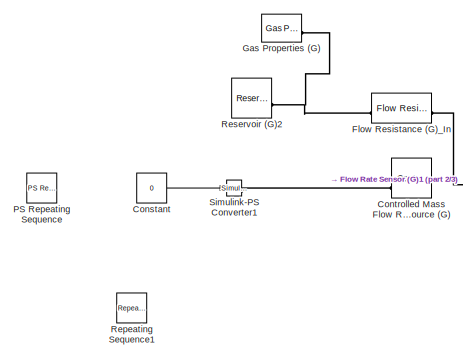
[diagram: root canvas - part 1/3, top left region]
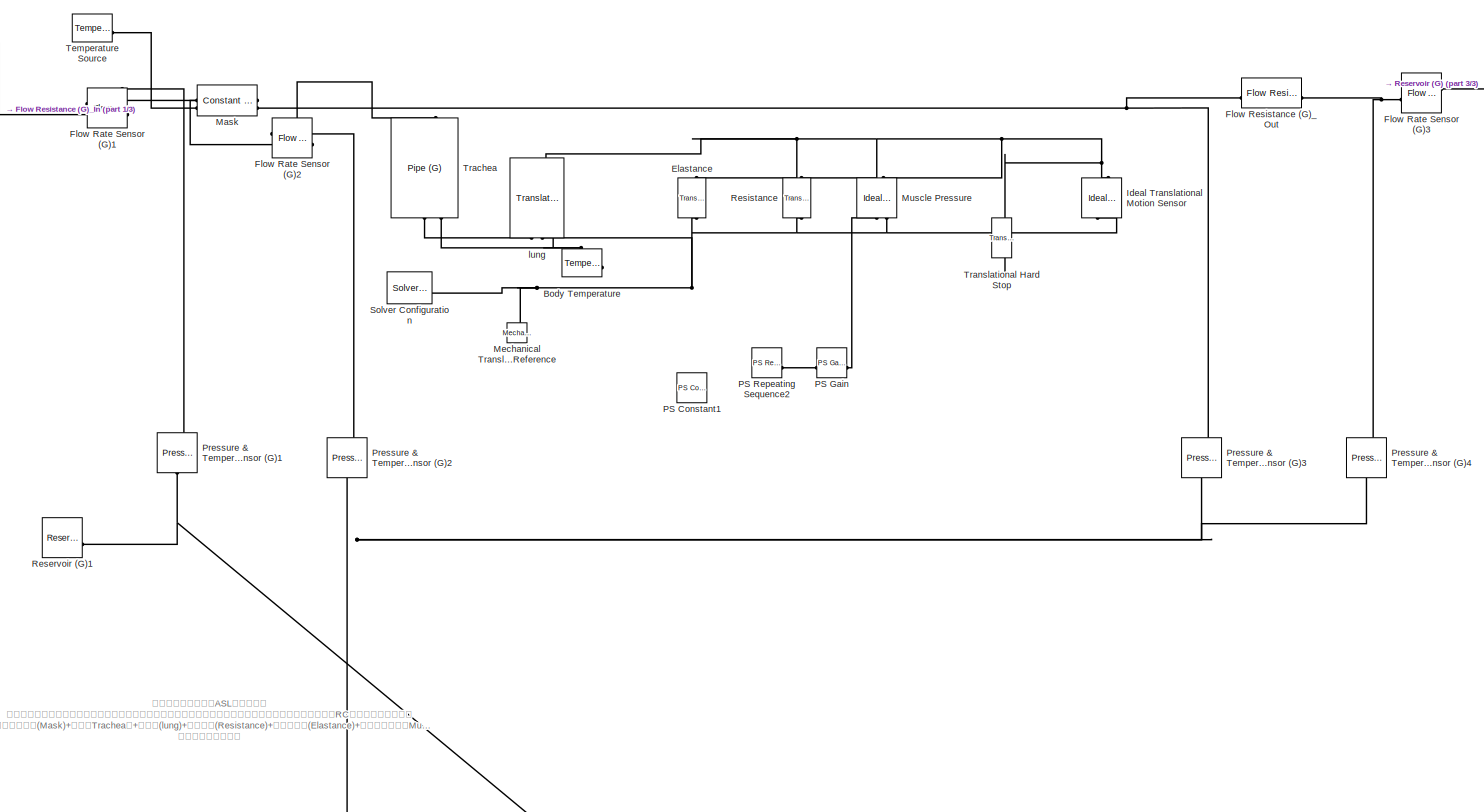
[diagram: root canvas - part 2/3, top center region]
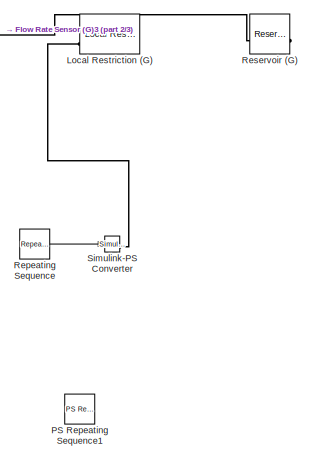
[diagram: root canvas - part 3/3, top right region]
MODEL slx_c47e8e62d65a
KIND model
CONFIG AbsTol = 1e-3
CONFIG EnableMultiTasking = off
CONFIG FixedStep = auto
CONFIG MaxStep = auto
CONFIG MinStep = auto
CONFIG RelTol = 1e-3
CONFIG SampleTimeConstraint = Unconstrained
CONFIG SolverName = VariableStepAuto
CONFIG StartTime = 0.0
CONFIG StopTime = 8
WORKSPACE source: mxarray member
WORKSPACE Cha: volumes (value not decoded)
WORKSPACE E_respriatory = 10
WORKSPACE FRC = 2
WORKSPACE Fan: object (value not decoded)
WORKSPACE L_to_m3 = 0.001
WORKSPACE Mask: object (value not decoded)
WORKSPACE Ori: object (value not decoded)
WORKSPACE Pipe: object (value not decoded)
WORKSPACE R_respiratory = 10
WORKSPACE Res: object (value not decoded)
WORKSPACE Trachea: object (value not decoded)
WORKSPACE VolMax = 0.9
WORKSPACE cmH2O_to_Pa = 98
WORKSPACE lung: object (value not decoded)
WORKSPACE r = 0.01
BLOCK [Reference] Body Temperature  REF=fl_lib/Thermal/Thermal Sources/Temperature Source
  NameLocation = top
  SourceBlock = fl_lib/Thermal/Thermal Sources/Temperature Source
  SourceType = Temperature Source
BLOCK [Constant] Constant
  Commented = on
  Value = 0
BLOCK [Reference] Controlled Mass Flow Rate Source (G)  REF=fl_lib/Gas/Sources/Controlled Mass Flow
Rate Source (G)
  Commented = on
  SourceBlock = fl_lib/Gas/Sources/Controlled Mass Flow\nRate Source (G)
  SourceType = Controlled Mass Flow\nRate Source (G)
BLOCK [Reference] Elastance  REF=fl_lib/Mechanical/Translational
Elements/Translational Spring
  NameLocation = left
  SourceBlock = fl_lib/Mechanical/Translational\nElements/Translational Spring
  SourceType = Translational Spring
BLOCK [Reference] Flow Rate Sensor (G)1  REF=fl_lib/Gas/Sensors/Flow Rate Sensor (G)
  SourceBlock = fl_lib/Gas/Sensors/Flow Rate Sensor (G)
  SourceType = Flow Rate Sensor (G)
BLOCK [Reference] Flow Rate Sensor (G)2  REF=fl_lib/Gas/Sensors/Flow Rate Sensor (G)
  SourceBlock = fl_lib/Gas/Sensors/Flow Rate Sensor (G)
  SourceType = Flow Rate Sensor (G)
BLOCK [Reference] Flow Rate Sensor (G)3  REF=fl_lib/Gas/Sensors/Flow Rate Sensor (G)
  SourceBlock = fl_lib/Gas/Sensors/Flow Rate Sensor (G)
  SourceType = Flow Rate Sensor (G)
BLOCK [Reference] Flow Resistance (G)_In  REF=fl_lib/Gas/Elements/Flow Resistance (G)
  SourceBlock = fl_lib/Gas/Elements/Flow Resistance (G)
  SourceType = Flow Resistance (G)
BLOCK [Reference] Flow Resistance (G)_Out  REF=fl_lib/Gas/Elements/Flow Resistance (G)
  SourceBlock = fl_lib/Gas/Elements/Flow Resistance (G)
  SourceType = Flow Resistance (G)
BLOCK [Reference] Gas Properties (G)  REF=fl_lib/Gas/Utilities/Gas Properties (G)
  SourceBlock = fl_lib/Gas/Utilities/Gas Properties (G)
  SourceType = Gas Properties (G)
BLOCK [Reference] Ideal Translational Motion Sensor  REF=fl_lib/Mechanical/Mechanical Sensors/Ideal Translational
Motion Sensor
  NameLocation = left
  SourceBlock = fl_lib/Mechanical/Mechanical Sensors/Ideal Translational\nMotion Sensor
  SourceType = Ideal Translational\nMotion Sensor
BLOCK [Reference] Local Restriction (G)  REF=fl_lib/Gas/Elements/Local Restriction
(G)
  Commented = on
  SourceBlock = fl_lib/Gas/Elements/Local Restriction\n(G)
  SourceType = Local Restriction\n(G)
BLOCK [Reference] Mask  REF=fl_lib/Gas/Elements/Constant Volume
Chamber (G)
  NameLocation = top
  SourceBlock = fl_lib/Gas/Elements/Constant Volume\nChamber (G)
  SourceType = Constant Volume\nChamber (G)
BLOCK [Reference] Mechanical Translational Reference  REF=fl_lib/Mechanical/Translational
Elements/Mechanical
Translational
Reference
  NameLocation = right
  SourceBlock = fl_lib/Mechanical/Translational\nElements/Mechanical\nTranslational\nReference
  SourceType = Mechanical\nTranslational\nReference
BLOCK [Reference] Muscle Pressure  REF=fl_lib/Mechanical/Mechanical Sources/Ideal Force Source
  NameLocation = right
  SourceBlock = fl_lib/Mechanical/Mechanical Sources/Ideal Force Source
  SourceType = Ideal Force Source
BLOCK [Reference] PS Constant1  REF=fl_lib/Physical Signals/Sources/PS Constant
  Commented = on
  SourceBlock = fl_lib/Physical Signals/Sources/PS Constant
  SourceType = PS Constant
BLOCK [Reference] PS Gain  REF=fl_lib/Physical Signals/Functions/PS Gain
  SourceBlock = fl_lib/Physical Signals/Functions/PS Gain
  SourceType = PS Gain
BLOCK [Reference] PS Repeating Sequence  REF=fl_lib/Physical Signals/Sources/PS Repeating
Sequence
  Commented = on
  SourceBlock = fl_lib/Physical Signals/Sources/PS Repeating\nSequence
  SourceType = PS Repeating\nSequence
BLOCK [Reference] PS Repeating Sequence1  REF=fl_lib/Physical Signals/Sources/PS Repeating
Sequence
  Commented = on
  SourceBlock = fl_lib/Physical Signals/Sources/PS Repeating\nSequence
  SourceType = PS Repeating\nSequence
BLOCK [Reference] PS Repeating Sequence2  REF=fl_lib/Physical Signals/Sources/PS Repeating
Sequence
  SourceBlock = fl_lib/Physical Signals/Sources/PS Repeating\nSequence
  SourceType = PS Repeating\nSequence
BLOCK [Reference] Pressure & Temperature Sensor (G)1  REF=fl_lib/Gas/Sensors/Pressure &
Temperature Sensor
(G)
  NameLocation = left
  SourceBlock = fl_lib/Gas/Sensors/Pressure &\nTemperature Sensor\n(G)
  SourceType = Pressure &\nTemperature Sensor\n(G)
BLOCK [Reference] Pressure & Temperature Sensor (G)2  REF=fl_lib/Gas/Sensors/Pressure &
Temperature Sensor
(G)
  NameLocation = left
  SourceBlock = fl_lib/Gas/Sensors/Pressure &\nTemperature Sensor\n(G)
  SourceType = Pressure &\nTemperature Sensor\n(G)
BLOCK [Reference] Pressure & Temperature Sensor (G)3  REF=fl_lib/Gas/Sensors/Pressure &
Temperature Sensor
(G)
  NameLocation = left
  SourceBlock = fl_lib/Gas/Sensors/Pressure &\nTemperature Sensor\n(G)
  SourceType = Pressure &\nTemperature Sensor\n(G)
BLOCK [Reference] Pressure & Temperature Sensor (G)4  REF=fl_lib/Gas/Sensors/Pressure &
Temperature Sensor
(G)
  NameLocation = left
  SourceBlock = fl_lib/Gas/Sensors/Pressure &\nTemperature Sensor\n(G)
  SourceType = Pressure &\nTemperature Sensor\n(G)
BLOCK [Reference] Repeating Sequence  REF=simulink/Sources/Repeating
Sequence
  Commented = on
  SourceBlock = simulink/Sources/Repeating\nSequence
  SourceType = Repeating table
BLOCK [Reference] Repeating Sequence1  REF=simulink/Sources/Repeating
Sequence
  Commented = on
  SourceBlock = simulink/Sources/Repeating\nSequence
  SourceType = Repeating table
BLOCK [Reference] Reservoir (G)  REF=fl_lib/Gas/Elements/Reservoir (G)
  NameLocation = top
  SourceBlock = fl_lib/Gas/Elements/Reservoir (G)
  SourceType = Reservoir (G)
BLOCK [Reference] Reservoir (G)1  REF=fl_lib/Gas/Elements/Reservoir (G)
  SourceBlock = fl_lib/Gas/Elements/Reservoir (G)
  SourceType = Reservoir (G)
BLOCK [Reference] Reservoir (G)2  REF=fl_lib/Gas/Elements/Reservoir (G)
  SourceBlock = fl_lib/Gas/Elements/Reservoir (G)
  SourceType = Reservoir (G)
BLOCK [Reference] Resistance  REF=fl_lib/Mechanical/Translational
Elements/Translational Damper
  NameLocation = left
  SourceBlock = fl_lib/Mechanical/Translational\nElements/Translational Damper
  SourceType = Translational Damper
BLOCK [Reference] Simulink-PS Converter  REF=nesl_utility/Simulink-PS
Converter
  Commented = on
  SourceBlock = nesl_utility/Simulink-PS\nConverter
  SourceType = Simulink-PS\nConverter
BLOCK [Reference] Simulink-PS Converter1  REF=nesl_utility/Simulink-PS
Converter
  Commented = on
  SourceBlock = nesl_utility/Simulink-PS\nConverter
  SourceType = Simulink-PS\nConverter
BLOCK [Reference] Solver Configuration  REF=nesl_utility/Solver
Configuration
  SourceBlock = nesl_utility/Solver\nConfiguration
  SourceType = Solver\nConfiguration
BLOCK [Reference] Temperature Source  REF=fl_lib/Thermal/Thermal Sources/Temperature Source
  SourceBlock = fl_lib/Thermal/Thermal Sources/Temperature Source
  SourceType = Temperature Source
BLOCK [Reference] Trachea  REF=fl_lib/Gas/Elements/Pipe (G)
  NameLocation = right
  SourceBlock = fl_lib/Gas/Elements/Pipe (G)
  SourceType = Pipe (G)
BLOCK [Reference] Translational Hard Stop  REF=fl_lib/Mechanical/Translational
Elements/Translational Hard
Stop
  NameLocation = left
  SourceBlock = fl_lib/Mechanical/Translational\nElements/Translational Hard\nStop
  SourceType = Translational Hard\nStop
BLOCK [Reference] lung  REF=fl_lib/Gas/Elements/Translational
Mechanical Converter
(G)
  NameLocation = right
  SourceBlock = fl_lib/Gas/Elements/Translational\nMechanical Converter\n(G)
  SourceType = Translational\nMechanical Converter\n(G)
ANNOTATION (root): 基于单缸活塞原理的ASL主动模拟肺 功能描述：该模型为包含自主呼吸患者呼吸系统的数学仿真模型，包含自主呼吸等效作用力发生器以及一阶RC等效呼吸力学模型。 主要结构：面罩(Mask)+气道（Trachea）+单缸肺(lung)+等效气阻(Resistance)+等效顺应性(Elastance)+自主呼吸用力（Muscle Pressure）+容积限制器（Translational Hard Stop）+潮气量计算模块（Ideal Translational Motion Sensor） 附：参数见模型空间
LINE Constant:1 -> Simulink-PS Converter1:1
LINE Repeating Sequence:1 -> Simulink-PS Converter:1
PNET net1: Body Temperature:LConn1 -- Trachea:LConn2 -- lung:LConn3
PLINE Controlled Mass Flow Rate Source (G):LConn2 -- Simulink-PS Converter1:RConn1
PNET net2: Elastance:LConn1 -- Ideal Translational Motion Sensor:LConn1 -- Muscle Pressure:LConn1 -- Resistance:LConn1 -- Translational Hard Stop:LConn1 -- lung:RConn1
PNET net3: Elastance:RConn1 -- Ideal Translational Motion Sensor:RConn1 -- Mechanical Translational Reference:LConn1 -- Muscle Pressure:RConn2 -- Resistance:RConn1 -- Solver Configuration:RConn1 -- Translational Hard Stop:RConn1 -- lung:LConn2
PLINE Flow Rate Sensor (G)1:LConn1 -- Flow Resistance (G)_In:RConn1
PNET net4: Flow Rate Sensor (G)1:RConn1 -- Mask:LConn1 -- Pressure & Temperature Sensor (G)1:LConn1
PLINE Flow Rate Sensor (G)2:LConn1 -- Mask:RConn1
PNET net5: Flow Rate Sensor (G)2:RConn1 -- Pressure & Temperature Sensor (G)2:LConn1 -- Trachea:RConn1
PNET net6: Flow Rate Sensor (G)3:LConn1 -- Flow Resistance (G)_Out:RConn1 -- Pressure & Temperature Sensor (G)4:LConn1
PLINE Flow Rate Sensor (G)3:RConn1 -- Reservoir (G):LConn1
PNET net7: Flow Resistance (G)_In:LConn1 -- Gas Properties (G):RConn1 -- Reservoir (G)2:LConn1
PNET net8: Flow Resistance (G)_Out:LConn1 -- Mask:RConn2 -- Pressure & Temperature Sensor (G)3:LConn1
PLINE Local Restriction (G):LConn2 -- Simulink-PS Converter:RConn1
PLINE Mask:LConn2 -- Temperature Source:LConn1
PLINE Muscle Pressure:RConn1 -- PS Gain:RConn1
PLINE PS Gain:LConn1 -- PS Repeating Sequence2:RConn1
PNET net9: Pressure & Temperature Sensor (G)1:RConn1 -- Pressure & Temperature Sensor (G)2:RConn1 -- Pressure & Temperature Sensor (G)3:RConn1 -- Pressure & Temperature Sensor (G)4:RConn1 -- Reservoir (G)1:LConn1
PLINE Trachea:LConn1 -- lung:LConn1
note: PNET lines group multi-terminal physical nets as a canonical sorted terminal list (undirected conserving connections); 2-terminal nets keep the pairwise PLINE form
